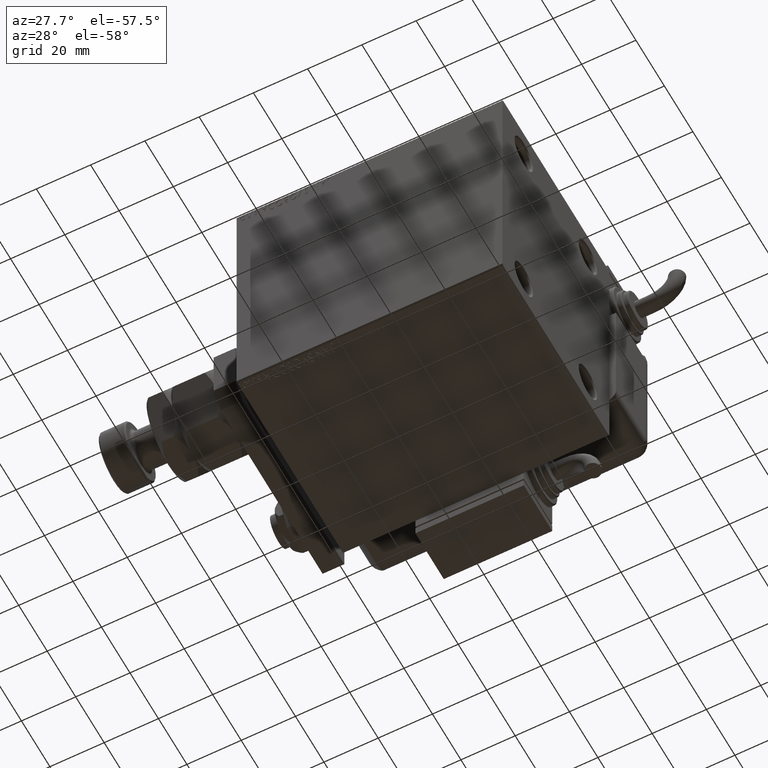
[diagram: clean part render]
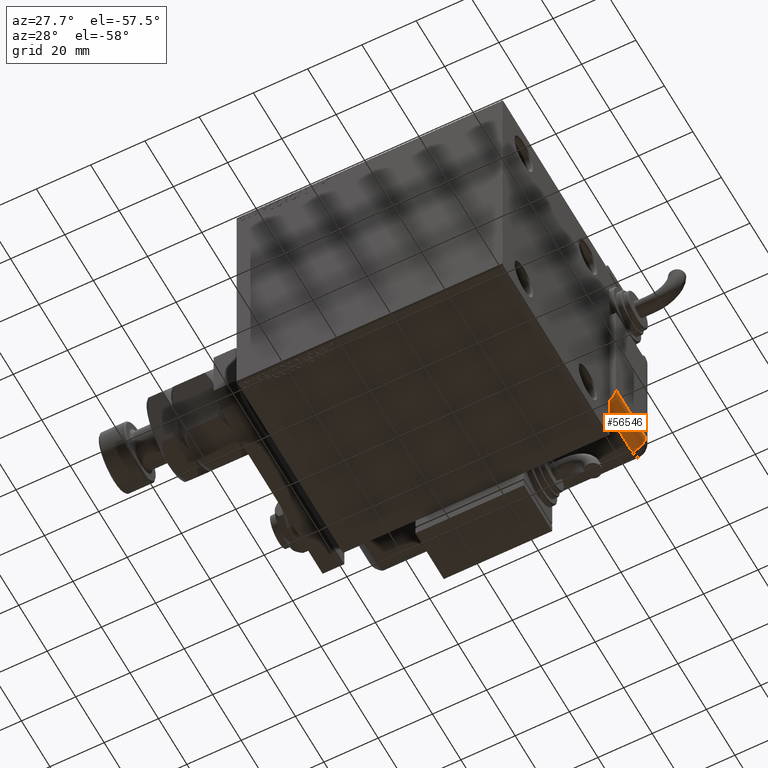
[diagram: same view with one face highlighted and labeled with its STEP entity id]
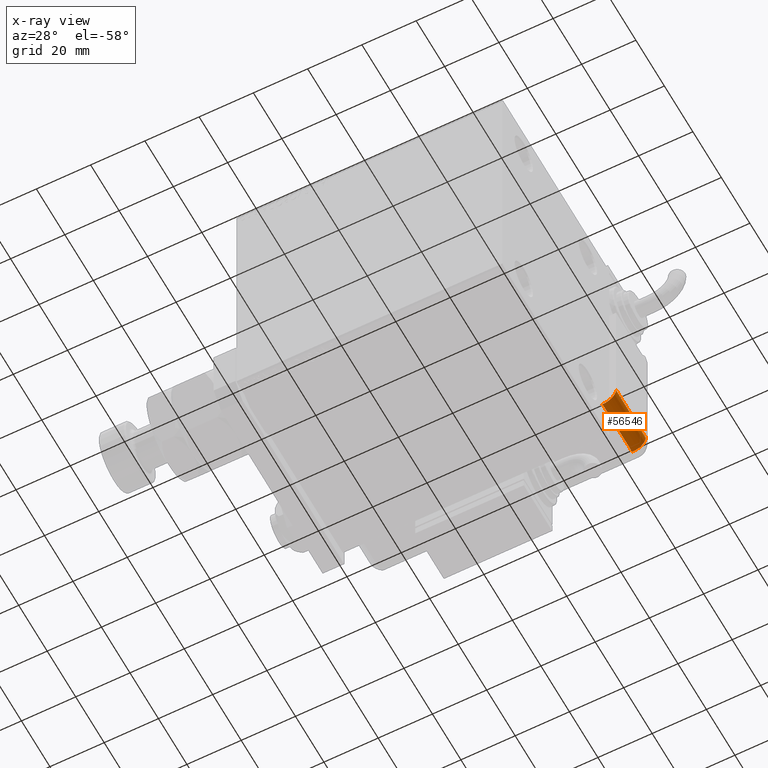
[diagram: x-ray of the same camera — body ghosted, the highlighted face saturated]
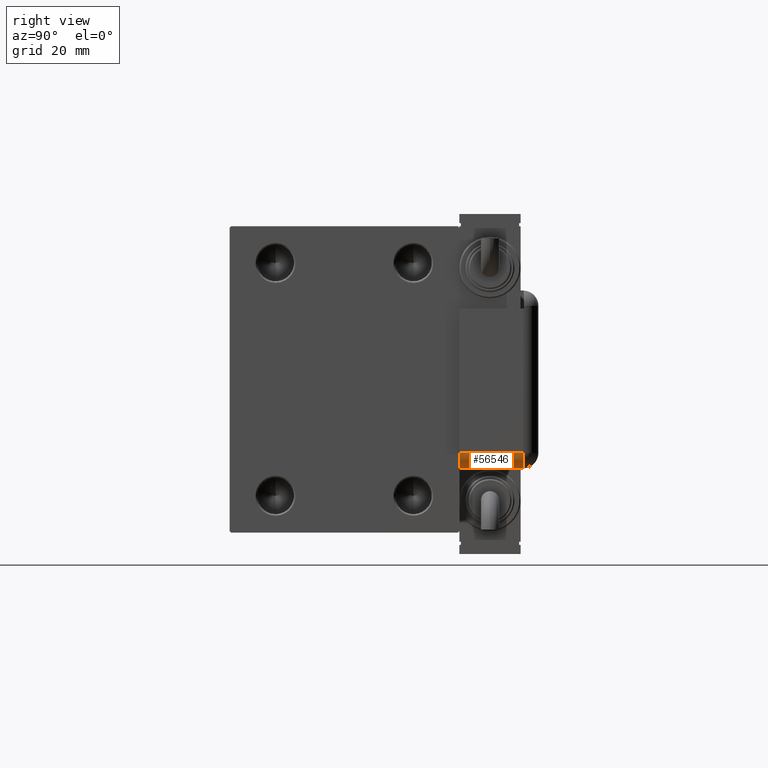
[diagram: same view with one face highlighted and labeled with its STEP entity id]
A machine part, auxiliary view. The second image highlights one B-rep face of the part: STEP entity #56546.
The next image is the same camera in x-ray: the body ghosted, the highlighted face saturated — about 0% of this face is hidden behind the body in this view.
A second angle (right view) of the same face is appended — the face is thin or edge-on in the first view.
In plain terms, the highlighted cylindrical surface (edge-blend (fillet) strip) has radius 5 mm, axis along (0, 1, -0).
Its self-contained STEP definition (entity closure, byte-faithful):
#1889 = CARTESIAN_POINT ( 'NONE',  ( -28.99999999999999645, -1.040834085586084257E-14, 5.000000000000004441 ) ) ;
#3608 = DIRECTION ( 'NONE',  ( -0.000000000000000000, 1.000000000000000000, -0.000000000000000000 ) ) ;
#3811 = CARTESIAN_POINT ( 'NONE',  ( -28.99999999999999645, -9.421223957302265857E-15, 5.000000000000004441 ) ) ;
#7191 = LINE ( 'NONE', #1889, #28384 ) ;
#8967 = CARTESIAN_POINT ( 'NONE',  ( -23.99999999999999645, 20.79999999999998295, 5.000000000000000000 ) ) ;
#12891 = VERTEX_POINT ( 'NONE', #3811 ) ;
#15991 = CYLINDRICAL_SURFACE ( 'NONE', #17850, 5.000000000000000888 ) ;
#16881 = CIRCLE ( 'NONE', #24881, 5.000000000000000000 ) ;
#17312 = CARTESIAN_POINT ( 'NONE',  ( -23.99999999999999289, 1.007682896475360021E-13, 0.000000000000000000 ) ) ;
#17698 = CARTESIAN_POINT ( 'NONE',  ( -23.99999999999999645, 20.79999999999998295, 0.000000000000000000 ) ) ;
#17850 = AXIS2_PLACEMENT_3D ( 'NONE', #45443, #35123, #55447 ) ;
#24881 = AXIS2_PLACEMENT_3D ( 'NONE', #8967, #27486, #60980 ) ;
#26929 = DIRECTION ( 'NONE',  ( 0.000000000000000000, -1.000000000000000000, 0.000000000000000000 ) ) ;
#27486 = DIRECTION ( 'NONE',  ( 0.000000000000000000, 1.000000000000000000, 0.000000000000000000 ) ) ;
#28384 = VECTOR ( 'NONE', #26929, 1000.000000000000000 ) ;
#31619 = VERTEX_POINT ( 'NONE', #50937 ) ;
#31781 = EDGE_CURVE ( 'NONE', #12891, #45722, #58212, .T. ) ;
#31961 = ORIENTED_EDGE ( 'NONE', *, *, #41207, .F. ) ;
#34207 = AXIS2_PLACEMENT_3D ( 'NONE', #38380, #57479, #40553 ) ;
#35123 = DIRECTION ( 'NONE',  ( 0.000000000000000000, 1.000000000000000000, 0.000000000000000000 ) ) ;
#36058 = FACE_OUTER_BOUND ( 'NONE', #46828, .T. ) ;
#37393 = CARTESIAN_POINT ( 'NONE',  ( -28.99999999999999645, 20.79999999999998295, 5.000000000000004441 ) ) ;
#38380 = CARTESIAN_POINT ( 'NONE',  ( -23.99999999999999645, 1.006139616066548115E-13, 5.000000000000004441 ) ) ;
#40553 = DIRECTION ( 'NONE',  ( -1.000000000000000000, 2.079047426506382555E-15, 0.000000000000000000 ) ) ;
#41207 = EDGE_CURVE ( 'NONE', #54266, #12891, #7191, .T. ) ;
#42485 = ORIENTED_EDGE ( 'NONE', *, *, #57829, .F. ) ;
#45443 = CARTESIAN_POINT ( 'NONE',  ( -23.99999999999999645, 25.79999999999998295, 5.000000000000004441 ) ) ;
#45722 = VERTEX_POINT ( 'NONE', #17312 ) ;
#46828 = EDGE_LOOP ( 'NONE', ( #51826, #31961, #42485, #58448 ) ) ;
#47762 = LINE ( 'NONE', #17698, #60064 ) ;
#50937 = CARTESIAN_POINT ( 'NONE',  ( -23.99999999999999645, 20.79999999999998295, 0.000000000000000000 ) ) ;
#51826 = ORIENTED_EDGE ( 'NONE', *, *, #31781, .F. ) ;
#54266 = VERTEX_POINT ( 'NONE', #37393 ) ;
#55447 = DIRECTION ( 'NONE',  ( 0.000000000000000000, 0.000000000000000000, 1.000000000000000000 ) ) ;
#56546 = ADVANCED_FACE ( 'NONE', ( #36058 ), #15991, .T. ) ;
#57479 = DIRECTION ( 'NONE',  ( -2.079047426506382950E-15, -1.000000000000000000, 0.000000000000000000 ) ) ;
#57829 = EDGE_CURVE ( 'NONE', #31619, #54266, #16881, .T. ) ;
#58212 = CIRCLE ( 'NONE', #34207, 5.000000000000000888 ) ;
#58448 = ORIENTED_EDGE ( 'NONE', *, *, #61891, .F. ) ;
#60064 = VECTOR ( 'NONE', #3608, 1000.000000000000000 ) ;
#60980 = DIRECTION ( 'NONE',  ( 0.000000000000000000, 0.000000000000000000, 1.000000000000000000 ) ) ;
#61891 = EDGE_CURVE ( 'NONE', #45722, #31619, #47762, .T. ) ;